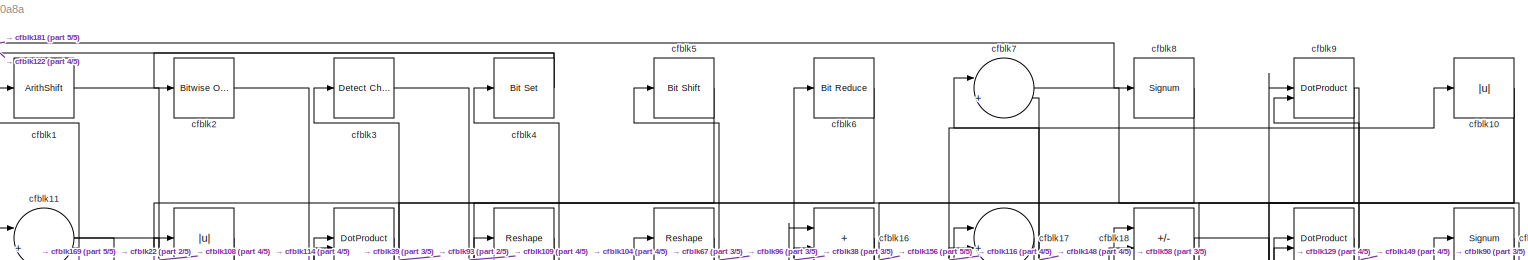
[diagram: root canvas - part 1/5, full width, top band]
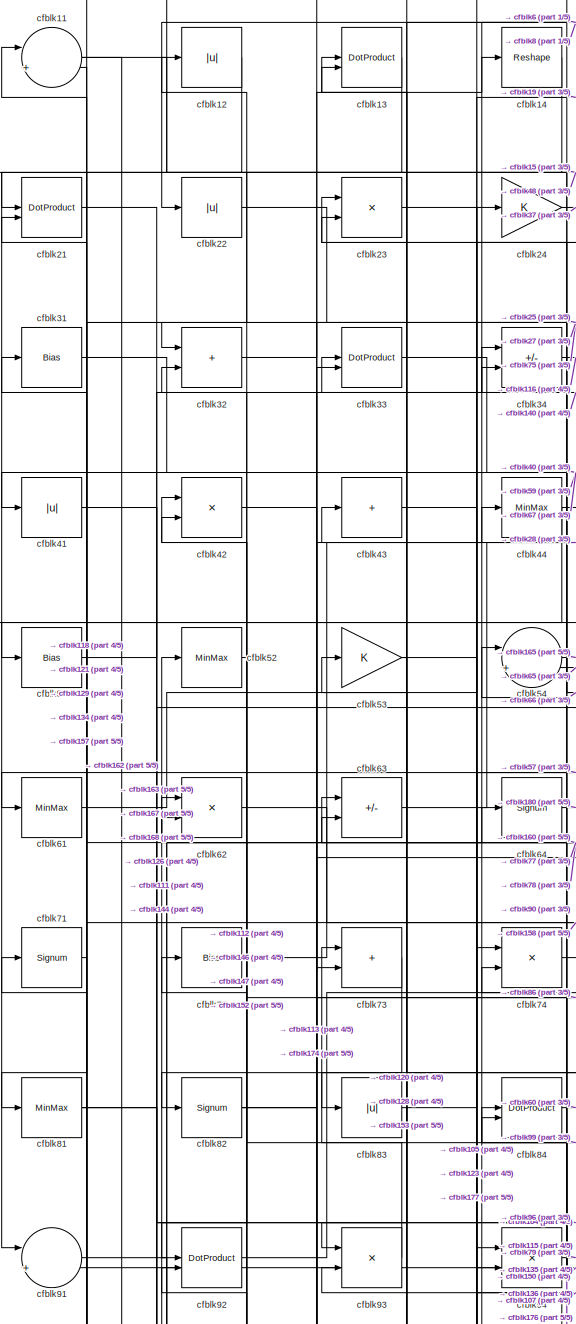
[diagram: root canvas - part 2/5, top left region]
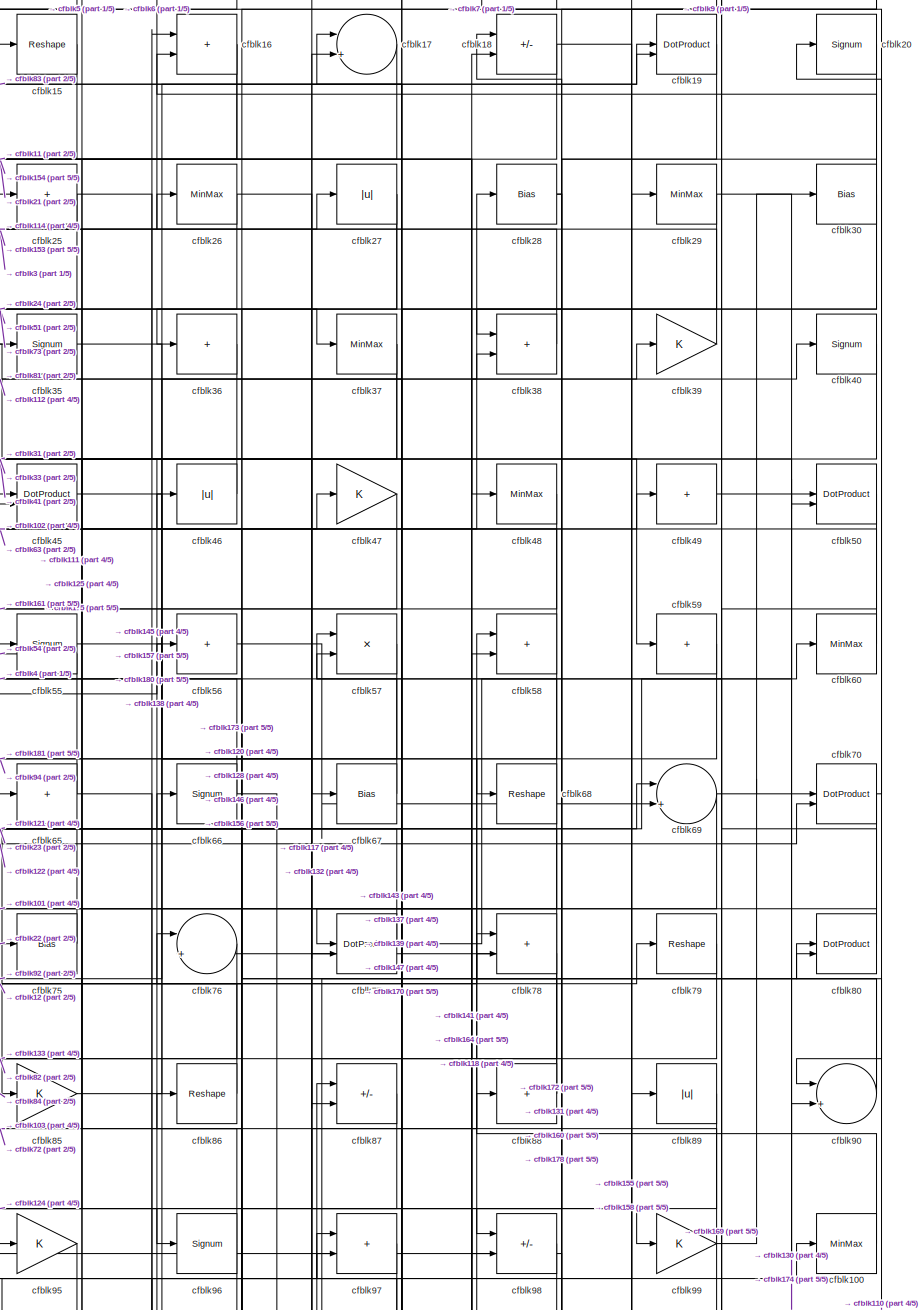
[diagram: root canvas - part 3/5, top right region]
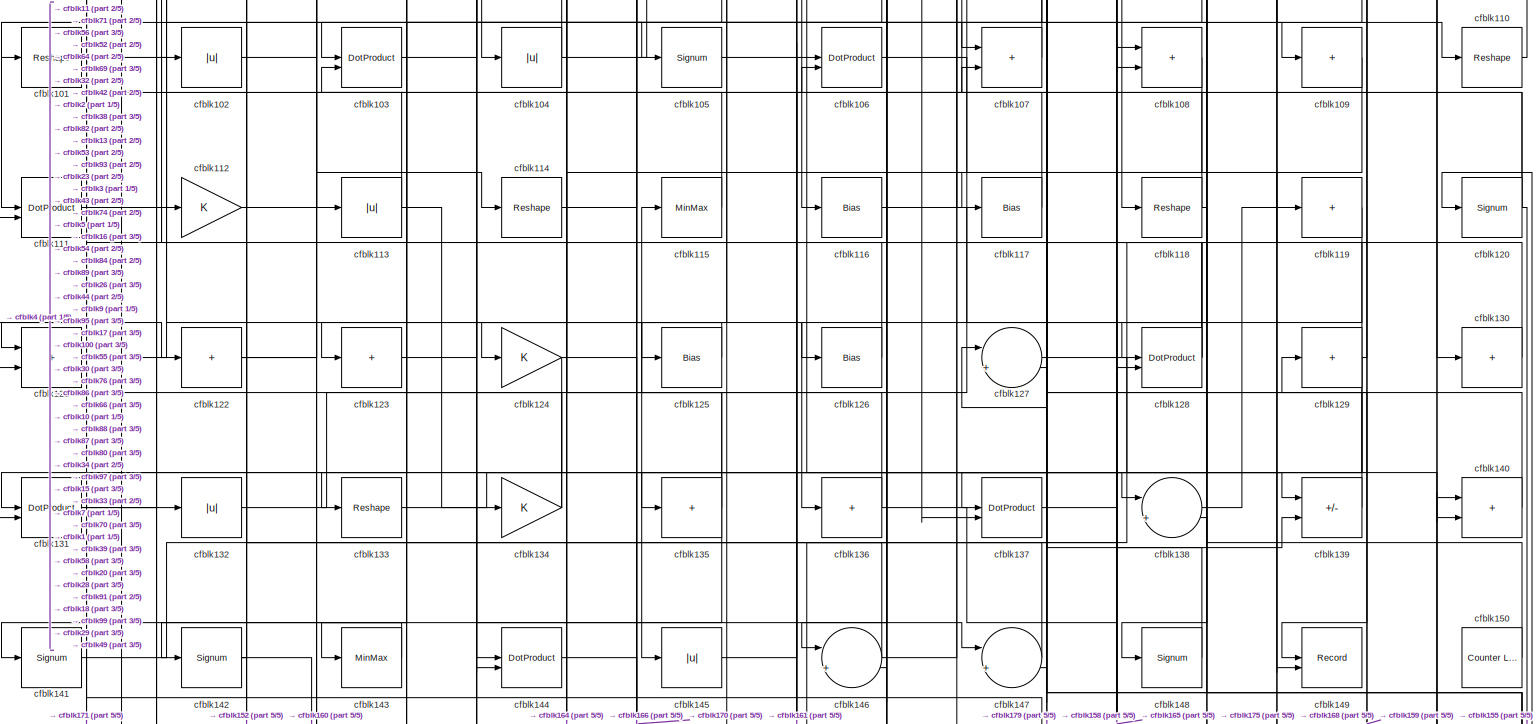
[diagram: root canvas - part 4/5, full width, middle band]
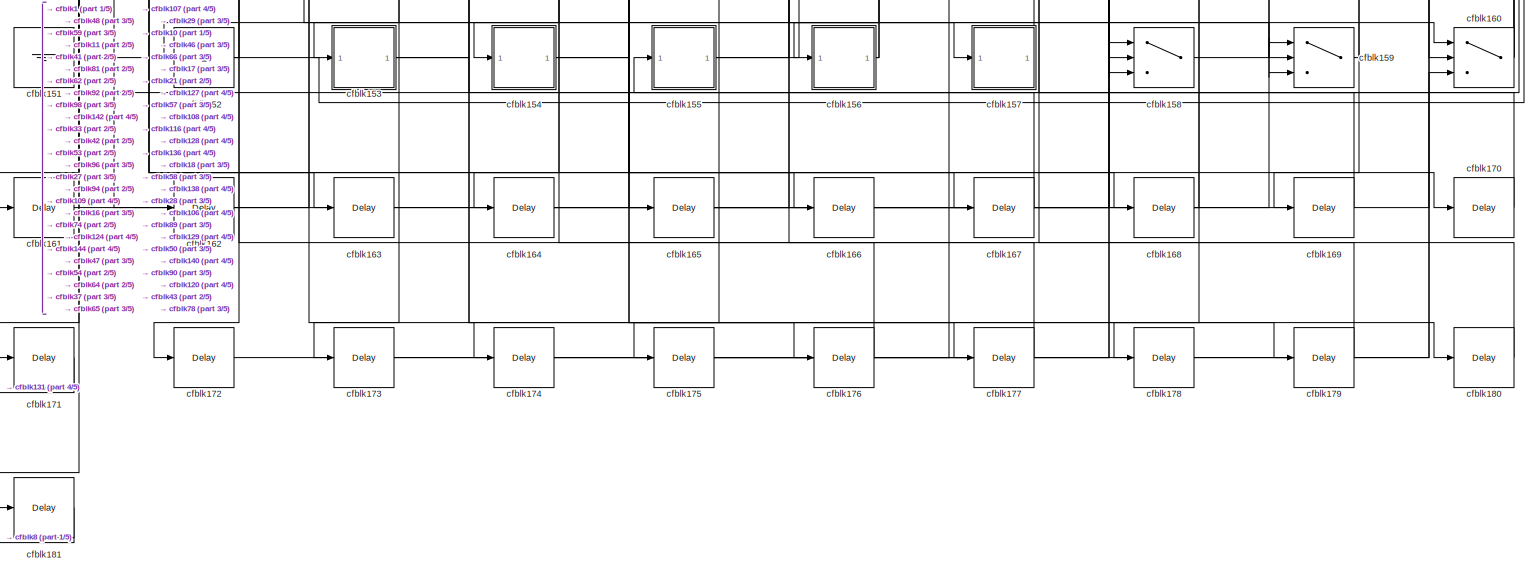
[diagram: root canvas - part 5/5, full width, bottom band]
MODEL slx_df0227ee0a8a
KIND model
CONFIG AbsTol = auto
CONFIG EnableMultiTasking = off
CONFIG FixedStep = auto
CONFIG MaxStep = auto
CONFIG MinStep = auto
CONFIG RelTol = 1e-3
CONFIG SampleTimeConstraint = Unconstrained
CONFIG SolverName = VariableStepAuto
CONFIG StartTime = 0.0
CONFIG StopTime = 10.0
BLOCK [ArithShift] cfblk1
  BitShiftNumber = 8
  InputPortMap = u0
BLOCK [Abs] cfblk10
  SaturateOnIntegerOverflow = off
BLOCK [MinMax] cfblk100
BLOCK [Reshape] cfblk101
BLOCK [Abs] cfblk102
  SaturateOnIntegerOverflow = off
BLOCK [DotProduct] cfblk103
  OutDataTypeStr = Inherit: Inherit via internal rule
BLOCK [Abs] cfblk104
  SaturateOnIntegerOverflow = off
BLOCK [Signum] cfblk105
BLOCK [DotProduct] cfblk106
  OutDataTypeStr = Inherit: Inherit via internal rule
BLOCK [Sum] cfblk107
  IconShape = rectangular
BLOCK [Sum] cfblk108
  IconShape = rectangular
BLOCK [Sum] cfblk109
  IconShape = rectangular
  Inputs = +
BLOCK [Sum] cfblk11
  Inputs = |++
BLOCK [Reshape] cfblk110
BLOCK [DotProduct] cfblk111
  OutDataTypeStr = Inherit: Inherit via internal rule
BLOCK [Gain] cfblk112
BLOCK [Abs] cfblk113
  SaturateOnIntegerOverflow = off
BLOCK [Reshape] cfblk114
BLOCK [MinMax] cfblk115
BLOCK [Bias] cfblk116
  Bias = 0.0
  SaturateOnIntegerOverflow = off
BLOCK [Bias] cfblk117
  Bias = 0.0
  SaturateOnIntegerOverflow = off
BLOCK [Reshape] cfblk118
BLOCK [Sum] cfblk119
  IconShape = rectangular
  Inputs = +
BLOCK [Abs] cfblk12
  SaturateOnIntegerOverflow = off
BLOCK [Signum] cfblk120
BLOCK [Sum] cfblk121
  IconShape = rectangular
BLOCK [Sum] cfblk122
  IconShape = rectangular
  Inputs = +
BLOCK [Sum] cfblk123
  IconShape = rectangular
  Inputs = +
BLOCK [Gain] cfblk124
BLOCK [Bias] cfblk125
  Bias = 0.0
  SaturateOnIntegerOverflow = off
BLOCK [Bias] cfblk126
  Bias = 0.0
  SaturateOnIntegerOverflow = off
BLOCK [Sum] cfblk127
  Inputs = |++
BLOCK [DotProduct] cfblk128
  OutDataTypeStr = Inherit: Inherit via internal rule
BLOCK [Sum] cfblk129
  IconShape = rectangular
  Inputs = +
BLOCK [DotProduct] cfblk13
  OutDataTypeStr = Inherit: Inherit via internal rule
BLOCK [Sum] cfblk130
  IconShape = rectangular
  Inputs = +
BLOCK [DotProduct] cfblk131
  OutDataTypeStr = Inherit: Inherit via internal rule
BLOCK [Abs] cfblk132
  SaturateOnIntegerOverflow = off
BLOCK [Reshape] cfblk133
BLOCK [Gain] cfblk134
BLOCK [Sum] cfblk135
  IconShape = rectangular
  Inputs = +
BLOCK [Sum] cfblk136
  IconShape = rectangular
  Inputs = +
BLOCK [DotProduct] cfblk137
  OutDataTypeStr = Inherit: Inherit via internal rule
BLOCK [Sum] cfblk138
  Inputs = |++
BLOCK [Sum] cfblk139
  IconShape = rectangular
  Inputs = +-
BLOCK [Reshape] cfblk14
BLOCK [Sum] cfblk140
  IconShape = rectangular
BLOCK [Signum] cfblk141
BLOCK [Signum] cfblk142
BLOCK [MinMax] cfblk143
BLOCK [DotProduct] cfblk144
  OutDataTypeStr = Inherit: Inherit via internal rule
BLOCK [Abs] cfblk145
  SaturateOnIntegerOverflow = off
BLOCK [Sum] cfblk146
  Inputs = |++
BLOCK [Sum] cfblk147
  Inputs = |++
BLOCK [Signum] cfblk148
BLOCK [Record] cfblk149
  CompatibilityTag = XY
  FileSettingsInternal = {"entries":[{"content":{"excelSettings":{"content":{},"type":"Streamout.ExcelSettings"}},"type":"Streamout.FileSettingStorage","uuid":""}],"packageUris":["http:\/\/schema.mathworks.com\/mf0\/streamout_blocks\/R2020a"],"version":"1.0"}
  Layout = [1 1]
  SignalsInternal = {"entries":[{"content":{"signals":[{"content":{"blockPath":[],"dimensions":[1],"domain":"","lineColor":"#a2142f","plots":[1],"port":1,"signalID":6674,"signalName":"XY Graph:1"},"type":"RecordBlkView.Signal","uuid":""},{"content":{"blockPath":[],"dimensions":[1],"domain":"","lineColor":"#139fff","plots":[1],"port":2,"signalID":6677,"signalName":"XY Graph:2"},"type":"RecordBlkView.Signal","uuid":""}...<+146ch>
  VisualizationBindings = {"xyplotplugin":{"info":[{"series":[{"bindingParametersList":[{"parameter":"X-Axis","signalID":6674,"signalName":"XY Graph:1"},{"parameter":"Y-Axis","signalID":6677,"signalName":"XY Graph:2"}],"seriesID":29365}],"subplotID":1}]}}
  st = -1
BLOCK [Reshape] cfblk15
BLOCK [Reference] cfblk150  REF=hdlsllib/Sources/Counter
Limited
  SourceBlock = hdlsllib/Sources/Counter\nLimited
  SourceType = Counter Limited
BLOCK [Ground] cfblk151
BLOCK [Constant] cfblk152
  SampleTime = -1
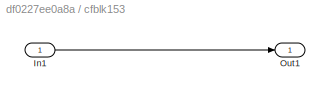
BLOCK [SubSystem] cfblk153
  LibrarySourceBlock = hdlsllib/Ports &\nSubsystems/Subsystem
BLOCK [Inport] cfblk153/In1
BLOCK [Outport] cfblk153/Out1
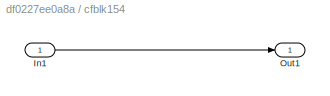
BLOCK [SubSystem] cfblk154
  LibrarySourceBlock = hdlsllib/Ports &\nSubsystems/Subsystem
BLOCK [Inport] cfblk154/In1
BLOCK [Outport] cfblk154/Out1
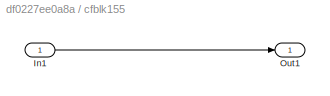
BLOCK [SubSystem] cfblk155
  LibrarySourceBlock = hdlsllib/Ports &\nSubsystems/Subsystem
BLOCK [Inport] cfblk155/In1
BLOCK [Outport] cfblk155/Out1
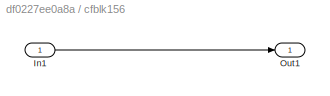
BLOCK [SubSystem] cfblk156
  LibrarySourceBlock = hdlsllib/Ports &\nSubsystems/Subsystem
BLOCK [Inport] cfblk156/In1
BLOCK [Outport] cfblk156/Out1
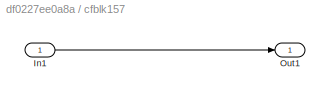
BLOCK [SubSystem] cfblk157
  LibrarySourceBlock = hdlsllib/Ports &\nSubsystems/Subsystem
BLOCK [Inport] cfblk157/In1
BLOCK [Outport] cfblk157/Out1
BLOCK [Switch] cfblk158
  InputSameDT = off
  SaturateOnIntegerOverflow = off
BLOCK [Switch] cfblk159
  InputSameDT = off
  SaturateOnIntegerOverflow = off
BLOCK [Sum] cfblk16
  IconShape = rectangular
BLOCK [Switch] cfblk160
  InputSameDT = off
  SaturateOnIntegerOverflow = off
BLOCK [Delay] cfblk161
  InputPortMap = u0
  SampleTime = 1
BLOCK [Delay] cfblk162
  InputPortMap = u0
  SampleTime = 1
BLOCK [Delay] cfblk163
  InputPortMap = u0
  SampleTime = 1
BLOCK [Delay] cfblk164
  InputPortMap = u0
  SampleTime = 1
BLOCK [Delay] cfblk165
  InputPortMap = u0
  SampleTime = 1
BLOCK [Delay] cfblk166
  InputPortMap = u0
  SampleTime = 1
BLOCK [Delay] cfblk167
  InputPortMap = u0
  SampleTime = 1
BLOCK [Delay] cfblk168
  InputPortMap = u0
  SampleTime = 1
BLOCK [Delay] cfblk169
  InputPortMap = u0
  SampleTime = 1
BLOCK [Sum] cfblk17
  Inputs = |++
BLOCK [Delay] cfblk170
  InputPortMap = u0
  SampleTime = 1
BLOCK [Delay] cfblk171
  InputPortMap = u0
  SampleTime = 1
BLOCK [Delay] cfblk172
  InputPortMap = u0
  SampleTime = 1
BLOCK [Delay] cfblk173
  InputPortMap = u0
  SampleTime = 1
BLOCK [Delay] cfblk174
  InputPortMap = u0
  SampleTime = 1
BLOCK [Delay] cfblk175
  InputPortMap = u0
  SampleTime = 1
BLOCK [Delay] cfblk176
  InputPortMap = u0
  SampleTime = 1
BLOCK [Delay] cfblk177
  InputPortMap = u0
  SampleTime = 1
BLOCK [Delay] cfblk178
  InputPortMap = u0
  SampleTime = 1
BLOCK [Delay] cfblk179
  InputPortMap = u0
  SampleTime = 1
BLOCK [Sum] cfblk18
  IconShape = rectangular
  Inputs = +-
BLOCK [Delay] cfblk180
  InputPortMap = u0
  SampleTime = 1
BLOCK [Delay] cfblk181
  InputPortMap = u0
  SampleTime = 1
BLOCK [DotProduct] cfblk19
  OutDataTypeStr = Inherit: Inherit via internal rule
BLOCK [Reference] cfblk2  REF=simulink/Logic and Bit
Operations/Bitwise
Operator
  LibrarySourceBlock = hdlsllib/Logic and Bit\nOperations/Bitwise\nOperator
  SourceBlock = simulink/Logic and Bit\nOperations/Bitwise\nOperator
  SourceType = Bitwise Operator
BLOCK [Signum] cfblk20
BLOCK [DotProduct] cfblk21
  OutDataTypeStr = Inherit: Inherit via internal rule
BLOCK [Abs] cfblk22
  SaturateOnIntegerOverflow = off
BLOCK [Product] cfblk23
  Inputs = */
  RndMeth = Zero
  SaturateOnIntegerOverflow = on
BLOCK [Gain] cfblk24
BLOCK [Sum] cfblk25
  IconShape = rectangular
  Inputs = +
BLOCK [MinMax] cfblk26
BLOCK [Abs] cfblk27
  SaturateOnIntegerOverflow = off
BLOCK [Bias] cfblk28
  Bias = 0.0
  SaturateOnIntegerOverflow = off
BLOCK [MinMax] cfblk29
BLOCK [Reference] cfblk3  REF=simulink/Logic and Bit
Operations/Detect
Change
  LibrarySourceBlock = hdlsllib/Logic and Bit\nOperations/Detect\nChange
  SourceBlock = simulink/Logic and Bit\nOperations/Detect\nChange
  SourceType = Detect Change
BLOCK [Bias] cfblk30
  Bias = 0.0
  SaturateOnIntegerOverflow = off
BLOCK [Bias] cfblk31
  Bias = 0.0
  SaturateOnIntegerOverflow = off
BLOCK [Sum] cfblk32
  IconShape = rectangular
BLOCK [DotProduct] cfblk33
  OutDataTypeStr = Inherit: Inherit via internal rule
BLOCK [Sum] cfblk34
  IconShape = rectangular
  Inputs = +-
BLOCK [Signum] cfblk35
BLOCK [Sum] cfblk36
  IconShape = rectangular
  Inputs = +
BLOCK [MinMax] cfblk37
BLOCK [Sum] cfblk38
  IconShape = rectangular
BLOCK [Gain] cfblk39
BLOCK [Reference] cfblk4  REF=simulink/Logic and Bit
Operations/Bit Set
  LibrarySourceBlock = hdlsllib/Logic and Bit\nOperations/Bit Set
  SourceBlock = simulink/Logic and Bit\nOperations/Bit Set
  SourceType = Bit Set
BLOCK [Signum] cfblk40
BLOCK [Abs] cfblk41
  SaturateOnIntegerOverflow = off
BLOCK [Product] cfblk42
  Inputs = */
  RndMeth = Zero
  SaturateOnIntegerOverflow = on
BLOCK [Sum] cfblk43
  IconShape = rectangular
  Inputs = +
BLOCK [MinMax] cfblk44
BLOCK [DotProduct] cfblk45
  OutDataTypeStr = Inherit: Inherit via internal rule
BLOCK [Abs] cfblk46
  SaturateOnIntegerOverflow = off
BLOCK [Gain] cfblk47
BLOCK [MinMax] cfblk48
BLOCK [Sum] cfblk49
  IconShape = rectangular
  Inputs = +
BLOCK [Reference] cfblk5  REF=hdlsllib/Logic and Bit
Operations/Bit Shift
  SourceBlock = hdlsllib/Logic and Bit\nOperations/Bit Shift
  SourceType = Bit Shift
BLOCK [DotProduct] cfblk50
  OutDataTypeStr = Inherit: Inherit via internal rule
BLOCK [Bias] cfblk51
  Bias = 0.0
  SaturateOnIntegerOverflow = off
BLOCK [MinMax] cfblk52
BLOCK [Gain] cfblk53
BLOCK [Sum] cfblk54
  Inputs = |++
BLOCK [Signum] cfblk55
BLOCK [Sum] cfblk56
  IconShape = rectangular
  Inputs = +
BLOCK [Product] cfblk57
  Inputs = */
  RndMeth = Zero
  SaturateOnIntegerOverflow = on
BLOCK [Sum] cfblk58
  IconShape = rectangular
BLOCK [Sum] cfblk59
  IconShape = rectangular
  Inputs = +
BLOCK [Reference] cfblk6  REF=hdlsllib/Logic and Bit
Operations/Bit Reduce
  SourceBlock = hdlsllib/Logic and Bit\nOperations/Bit Reduce
  SourceType = Bit Reduce
BLOCK [MinMax] cfblk60
BLOCK [MinMax] cfblk61
BLOCK [Product] cfblk62
  Inputs = */
  RndMeth = Zero
  SaturateOnIntegerOverflow = on
BLOCK [Sum] cfblk63
  IconShape = rectangular
  Inputs = +-
BLOCK [Signum] cfblk64
BLOCK [Sum] cfblk65
  IconShape = rectangular
  Inputs = +
BLOCK [Signum] cfblk66
BLOCK [Bias] cfblk67
  Bias = 0.0
  SaturateOnIntegerOverflow = off
BLOCK [Reshape] cfblk68
BLOCK [Sum] cfblk69
  Inputs = |++
BLOCK [Sum] cfblk7
  Inputs = |++
BLOCK [DotProduct] cfblk70
  OutDataTypeStr = Inherit: Inherit via internal rule
BLOCK [Signum] cfblk71
BLOCK [Bias] cfblk72
  Bias = 0.0
  SaturateOnIntegerOverflow = off
BLOCK [Sum] cfblk73
  IconShape = rectangular
BLOCK [Product] cfblk74
  Inputs = */
  RndMeth = Zero
  SaturateOnIntegerOverflow = on
BLOCK [Bias] cfblk75
  Bias = 0.0
  SaturateOnIntegerOverflow = off
BLOCK [Sum] cfblk76
  Inputs = |++
BLOCK [DotProduct] cfblk77
  OutDataTypeStr = Inherit: Inherit via internal rule
BLOCK [Sum] cfblk78
  IconShape = rectangular
BLOCK [Reshape] cfblk79
BLOCK [Signum] cfblk8
BLOCK [DotProduct] cfblk80
  OutDataTypeStr = Inherit: Inherit via internal rule
BLOCK [MinMax] cfblk81
BLOCK [Signum] cfblk82
BLOCK [Abs] cfblk83
  SaturateOnIntegerOverflow = off
BLOCK [DotProduct] cfblk84
  OutDataTypeStr = Inherit: Inherit via internal rule
BLOCK [Gain] cfblk85
BLOCK [Reshape] cfblk86
BLOCK [Sum] cfblk87
  IconShape = rectangular
  Inputs = +-
BLOCK [Sum] cfblk88
  IconShape = rectangular
  Inputs = +
BLOCK [Abs] cfblk89
  SaturateOnIntegerOverflow = off
BLOCK [DotProduct] cfblk9
  OutDataTypeStr = Inherit: Inherit via internal rule
BLOCK [Sum] cfblk90
  Inputs = |++
BLOCK [Sum] cfblk91
  Inputs = |++
BLOCK [DotProduct] cfblk92
  OutDataTypeStr = Inherit: Inherit via internal rule
BLOCK [Product] cfblk93
  Inputs = */
  RndMeth = Zero
  SaturateOnIntegerOverflow = on
BLOCK [Product] cfblk94
  Inputs = */
  RndMeth = Zero
  SaturateOnIntegerOverflow = on
BLOCK [Gain] cfblk95
BLOCK [Signum] cfblk96
BLOCK [Sum] cfblk97
  IconShape = rectangular
BLOCK [Sum] cfblk98
  IconShape = rectangular
  Inputs = +-
BLOCK [Gain] cfblk99
LINE cfblk100:1 -> cfblk58:1
LINE cfblk101:1 -> cfblk135:1
LINE cfblk102:1 -> cfblk49:1
LINE cfblk103:1 -> cfblk97:1
NET cfblk104:1 -> cfblk13:2, cfblk9:1
LINE cfblk105:1 -> cfblk117:1
LINE cfblk106:1 -> cfblk159:3
LINE cfblk107:1 -> cfblk34:1
LINE cfblk108:1 -> cfblk127:2
LINE cfblk109:1 -> cfblk164:1
NET cfblk10:1 -> cfblk149:2, cfblk156:1
LINE cfblk110:1 -> cfblk80:2
LINE cfblk111:1 -> cfblk64:1
NET cfblk112:1 -> cfblk38:2, cfblk42:2
NET cfblk113:1 -> cfblk102:1, cfblk134:1
LINE cfblk114:1 -> cfblk26:1
LINE cfblk115:1 -> cfblk54:1
NET cfblk116:1 -> cfblk10:1, cfblk158:1
LINE cfblk117:1 -> cfblk87:1
NET cfblk118:1 -> cfblk11:1, cfblk148:1
LINE cfblk119:1 -> cfblk136:1
NET cfblk11:1 -> cfblk162:1, cfblk48:1
NET cfblk120:1 -> cfblk155:1, cfblk76:1, cfblk93:2
LINE cfblk121:1 -> cfblk69:1
NET cfblk122:1 -> cfblk106:2, cfblk70:2
LINE cfblk123:1 -> cfblk74:1
NET cfblk124:1 -> cfblk170:1, cfblk171:1
LINE cfblk125:1 -> cfblk123:1
LINE cfblk126:1 -> cfblk52:1
LINE cfblk127:1 -> cfblk140:2
NET cfblk128:1 -> cfblk13:1, cfblk53:1, cfblk86:1
NET cfblk129:1 -> cfblk11:2, cfblk144:2, cfblk145:1, cfblk9:2
LINE cfblk12:1 -> cfblk61:1
LINE cfblk130:1 -> cfblk97:2
NET cfblk131:1 -> cfblk132:1, cfblk56:1
LINE cfblk132:1 -> cfblk80:1
LINE cfblk133:1 -> cfblk139:1
NET cfblk134:1 -> cfblk103:2, cfblk71:1
NET cfblk135:1 -> cfblk115:1, cfblk142:1, cfblk84:2
NET cfblk136:1 -> cfblk158:3, cfblk84:1
LINE cfblk137:1 -> cfblk139:2
LINE cfblk138:1 -> cfblk119:1
LINE cfblk139:1 -> cfblk15:1
LINE cfblk13:1 -> cfblk32:1
LINE cfblk140:1 -> cfblk33:1
LINE cfblk141:1 -> cfblk39:1
NET cfblk142:1 -> cfblk112:1, cfblk160:1
LINE cfblk143:1 -> cfblk141:1
LINE cfblk144:1 -> cfblk166:1
LINE cfblk145:1 -> cfblk100:1
NET cfblk146:1 -> cfblk32:2, cfblk88:1
LINE cfblk147:1 -> cfblk42:1
LINE cfblk148:1 -> cfblk7:1
LINE cfblk14:1 -> cfblk91:1
LINE cfblk150:1 -> cfblk91:2
LINE cfblk151:1 -> cfblk159:2
NET cfblk152:1 -> cfblk120:1, cfblk62:1
LINE cfblk153/In1:1 -> cfblk153/Out1:1
NET cfblk153:1 -> cfblk176:1, cfblk27:1
LINE cfblk154/In1:1 -> cfblk154/Out1:1
NET cfblk154:1 -> cfblk179:1, cfblk47:1
LINE cfblk155/In1:1 -> cfblk155/Out1:1
NET cfblk155:1 -> cfblk107:2, cfblk29:1
LINE cfblk156/In1:1 -> cfblk156/Out1:1
NET cfblk156:1 -> cfblk46:1, cfblk66:1
LINE cfblk157/In1:1 -> cfblk157/Out1:1
LINE cfblk157:1 -> cfblk21:2
LINE cfblk158:1 -> cfblk89:1
LINE cfblk159:1 -> cfblk129:1
LINE cfblk15:1 -> cfblk21:1
NET cfblk160:1 -> cfblk43:1, cfblk62:2, cfblk78:2
LINE cfblk161:1 -> cfblk106:1
LINE cfblk162:1 -> cfblk33:2
LINE cfblk163:1 -> cfblk159:1
LINE cfblk164:1 -> cfblk58:2
LINE cfblk165:1 -> cfblk108:1
LINE cfblk166:1 -> cfblk140:1
LINE cfblk167:1 -> cfblk94:1
LINE cfblk168:1 -> cfblk138:2
LINE cfblk169:1 -> cfblk1:1
NET cfblk16:1 -> cfblk111:2, cfblk154:1
LINE cfblk170:1 -> cfblk57:2
LINE cfblk171:1 -> cfblk131:2
LINE cfblk172:1 -> cfblk18:2
LINE cfblk173:1 -> cfblk17:2
LINE cfblk174:1 -> cfblk90:2
LINE cfblk175:1 -> cfblk128:2
LINE cfblk176:1 -> cfblk74:2
LINE cfblk177:1 -> cfblk92:2
LINE cfblk178:1 -> cfblk160:3
LINE cfblk179:1 -> cfblk127:1
LINE cfblk17:1 -> cfblk125:1
LINE cfblk180:1 -> cfblk16:1
LINE cfblk181:1 -> cfblk8:1
NET cfblk18:1 -> cfblk110:1, cfblk35:1
LINE cfblk19:1 -> cfblk98:1
LINE cfblk1:1 -> cfblk108:2
LINE cfblk20:1 -> cfblk131:1
LINE cfblk21:1 -> cfblk96:1
LINE cfblk22:1 -> cfblk75:1
LINE cfblk23:1 -> cfblk147:1
LINE cfblk24:1 -> cfblk37:1
NET cfblk25:1 -> cfblk50:2, cfblk81:1
NET cfblk26:1 -> cfblk36:1, cfblk98:2
NET cfblk27:1 -> cfblk51:1, cfblk73:2
NET cfblk28:1 -> cfblk128:1, cfblk178:1
NET cfblk29:1 -> cfblk147:2, cfblk160:2
LINE cfblk2:1 -> cfblk114:1
NET cfblk30:1 -> cfblk146:2, cfblk16:2, cfblk77:1
LINE cfblk31:1 -> cfblk59:1
LINE cfblk32:1 -> cfblk14:1
LINE cfblk33:1 -> cfblk67:1
LINE cfblk34:1 -> cfblk116:1
LINE cfblk35:1 -> cfblk68:1
LINE cfblk36:1 -> cfblk95:1
NET cfblk37:1 -> cfblk175:1, cfblk45:2
LINE cfblk38:1 -> cfblk6:1
LINE cfblk39:1 -> cfblk3:1
LINE cfblk3:1 -> cfblk109:1
LINE cfblk40:1 -> cfblk41:1
NET cfblk41:1 -> cfblk163:1, cfblk99:1
LINE cfblk42:1 -> cfblk174:1
LINE cfblk43:1 -> cfblk105:1
NET cfblk44:1 -> cfblk107:1, cfblk121:2
LINE cfblk45:1 -> cfblk77:2
LINE cfblk46:1 -> cfblk45:1
LINE cfblk47:1 -> cfblk65:1
LINE cfblk48:1 -> cfblk161:1
LINE cfblk49:1 -> cfblk130:1
NET cfblk4:1 -> cfblk122:1, cfblk2:1
LINE cfblk50:1 -> cfblk169:1
LINE cfblk51:1 -> cfblk34:2
LINE cfblk52:1 -> cfblk92:1
NET cfblk53:1 -> cfblk153:1, cfblk177:1
LINE cfblk54:1 -> cfblk165:1
LINE cfblk55:1 -> cfblk138:1
LINE cfblk56:1 -> cfblk69:2
LINE cfblk57:1 -> cfblk94:2
NET cfblk58:1 -> cfblk118:1, cfblk7:2
LINE cfblk59:1 -> cfblk181:1
LINE cfblk5:1 -> cfblk104:1
LINE cfblk60:1 -> cfblk25:1
LINE cfblk61:1 -> cfblk24:1
LINE cfblk62:1 -> cfblk158:2
LINE cfblk63:1 -> cfblk28:1
LINE cfblk64:1 -> cfblk180:1
NET cfblk65:1 -> cfblk157:1, cfblk54:2
NET cfblk66:1 -> cfblk137:2, cfblk23:1
LINE cfblk67:1 -> cfblk4:1
NET cfblk68:1 -> cfblk17:1, cfblk85:1
NET cfblk69:1 -> cfblk101:1, cfblk30:1
LINE cfblk6:1 -> cfblk93:1
NET cfblk70:1 -> cfblk137:1, cfblk20:1
LINE cfblk71:1 -> cfblk121:1
LINE cfblk72:1 -> cfblk44:1
LINE cfblk73:1 -> cfblk83:1
LINE cfblk74:1 -> cfblk126:1
LINE cfblk75:1 -> cfblk31:1
LINE cfblk76:1 -> cfblk133:1
NET cfblk77:1 -> cfblk23:2, cfblk50:1
NET cfblk78:1 -> cfblk63:1, cfblk87:2
LINE cfblk79:1 -> cfblk82:1
LINE cfblk7:1 -> cfblk90:1
LINE cfblk80:1 -> cfblk57:1
NET cfblk81:1 -> cfblk167:1, cfblk168:1
NET cfblk82:1 -> cfblk113:1, cfblk78:1
LINE cfblk83:1 -> cfblk19:2
LINE cfblk84:1 -> cfblk60:1
LINE cfblk85:1 -> cfblk19:1
LINE cfblk86:1 -> cfblk12:1
LINE cfblk87:1 -> cfblk146:1
NET cfblk88:1 -> cfblk55:1, cfblk76:2
LINE cfblk89:1 -> cfblk124:1
LINE cfblk8:1 -> cfblk22:1
NET cfblk90:1 -> cfblk18:1, cfblk63:2
LINE cfblk91:1 -> cfblk144:1
LINE cfblk92:1 -> cfblk40:1
LINE cfblk93:1 -> cfblk73:1
LINE cfblk94:1 -> cfblk79:1
LINE cfblk95:1 -> cfblk111:1
NET cfblk96:1 -> cfblk173:1, cfblk5:1
LINE cfblk97:1 -> cfblk143:1
LINE cfblk98:1 -> cfblk172:1
NET cfblk99:1 -> cfblk103:1, cfblk70:1, cfblk72:1
NET cfblk9:1 -> cfblk149:1, cfblk38:1
note: NET lines group one-source signal fan-out (src -> all destinations, sorted); 1:1 wires keep LINE
